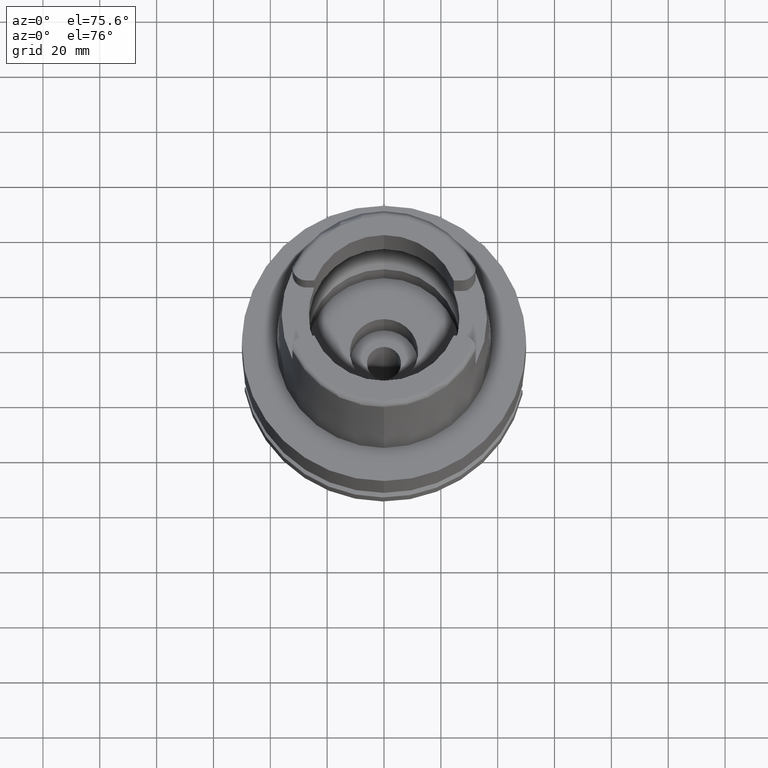
[diagram: clean part render]
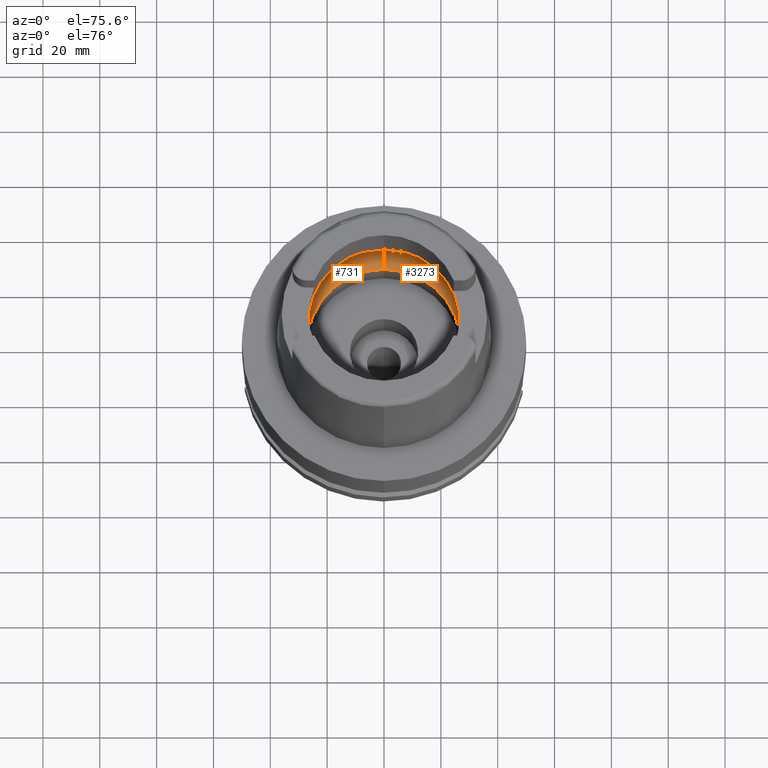
[diagram: same view with one multi-face feature highlighted, each face labeled with its STEP entity id]
A machine part, auxiliary view. The highlighted faces form ONE feature: a constant-radius fillet chain: 2 tangent blend faces with common blend radius 12 mm. The faces share edges in the B-rep.
Their STEP definitions:
[1] entity #3273 (Torus):
#43 = DIRECTION ( 'NONE',  ( 0.0000000000000000000, 1.000000000000000000, 0.0000000000000000000 ) ) ;
#102 = CARTESIAN_POINT ( 'NONE',  ( 0.0000000000000000000, -19.50000000000000000, 9.496624327025999790 ) ) ;
#173 = CARTESIAN_POINT ( 'NONE',  ( 0.0000000000000000000, 0.0000000000000000000, 0.04993178413023999923 ) ) ;
#303 = ORIENTED_EDGE ( 'NONE', *, *, #1255, .T. ) ;
#541 = CARTESIAN_POINT ( 'NONE',  ( 31.48971910754000447, 0.0000000000000000000, 9.000000000000000000 ) ) ;
#565 = CARTESIAN_POINT ( 'NONE',  ( 31.48416663622000300, 0.8216256622719000369, 9.037606172252001357 ) ) ;
#744 = CARTESIAN_POINT ( 'NONE',  ( 31.48416657243999950, -0.8216274657312000462, 9.037606582851999804 ) ) ;
#797 = ORIENTED_EDGE ( 'NONE', *, *, #2004, .F. ) ;
#882 = CARTESIAN_POINT ( 'NONE',  ( 0.0000000000000000000, 0.0000000000000000000, 9.496624327025999790 ) ) ;
#893 = CARTESIAN_POINT ( 'NONE',  ( 0.0000000000000000000, 0.0000000000000000000, 9.496624327025999790 ) ) ;
#917 = DIRECTION ( 'NONE',  ( 0.0000000000000000000, -0.6166666666667049990, -0.7872243785746061429 ) ) ;
#1063 = VERTEX_POINT ( 'NONE', #2509 ) ;
#1073 = CARTESIAN_POINT ( 'NONE',  ( 31.45843229728999901, -1.626122314408000147, 9.205188491873000700 ) ) ;
#1152 = B_SPLINE_CURVE_WITH_KNOTS ( 'NONE', 3,
 ( #2181, #2632, #4807, #565, #3544, #541 ),
 .UNSPECIFIED., .F., .F.,
 ( 4, 1, 1, 4 ),
 ( 0.0000000000000000000, 0.3333333333333000081, 0.6666666666667000474, 1.000000000000000000 ),
 .UNSPECIFIED. ) ;
#1255 = EDGE_CURVE ( 'NONE', #4161, #1063, #3977, .T. ) ;
#1319 = CIRCLE ( 'NONE', #3201, 31.49999999999998934 ) ;
#1320 = CARTESIAN_POINT ( 'NONE',  ( 0.0000000000000000000, 31.50000000000000000, 9.496624327025999790 ) ) ;
#1641 = VERTEX_POINT ( 'NONE', #2553 ) ;
#1689 = DIRECTION ( 'NONE',  ( 0.9971171061384295209, -0.07587803796965221503, 0.0000000000000000000 ) ) ;
#1859 = EDGE_CURVE ( 'NONE', #1641, #4761, #2684, .T. ) ;
#1863 = DIRECTION ( 'NONE',  ( 0.0000000000000000000, 0.0000000000000000000, 1.000000000000000000 ) ) ;
#1932 = TOROIDAL_SURFACE ( 'NONE', #2642, 19.50000000000000000, 12.00000000000000000 ) ;
#1936 = DIRECTION ( 'NONE',  ( 0.0000000000000000000, 0.0000000000000000000, 1.000000000000000000 ) ) ;
#2004 = EDGE_CURVE ( 'NONE', #4847, #1641, #1152, .T. ) ;
#2013 = DIRECTION ( 'NONE',  ( 1.000000000000000000, 0.0000000000000000000, 0.0000000000000000000 ) ) ;
#2181 = CARTESIAN_POINT ( 'NONE',  ( 31.40918884336000616, 2.390158196043999705, 9.496624327025999790 ) ) ;
#2203 = DIRECTION ( 'NONE',  ( 0.0000000000000000000, -1.000000000000000000, 0.0000000000000000000 ) ) ;
#2380 = DIRECTION ( 'NONE',  ( 0.0000000000000000000, 0.6166666666667049990, -0.7872243785746061429 ) ) ;
#2432 = CARTESIAN_POINT ( 'NONE',  ( 0.0000000000000000000, 19.50000000000000000, 9.496624327025999790 ) ) ;
#2457 = AXIS2_PLACEMENT_3D ( 'NONE', #102, #3468, #917 ) ;
#2509 = CARTESIAN_POINT ( 'NONE',  ( 0.0000000000000000000, -31.50000000000000000, 9.496624327025999790 ) ) ;
#2553 = CARTESIAN_POINT ( 'NONE',  ( 31.48971910754000447, 0.0000000000000000000, 9.000000000000000000 ) ) ;
#2632 = CARTESIAN_POINT ( 'NONE',  ( 31.42817530553000083, 2.140656143518000487, 9.388263675090000149 ) ) ;
#2642 = AXIS2_PLACEMENT_3D ( 'NONE', #4062, #1936, #3231 ) ;
#2684 = B_SPLINE_CURVE_WITH_KNOTS ( 'NONE', 3,
 ( #4578, #4917, #744, #1073, #3181, #2842 ),
 .UNSPECIFIED., .F., .F.,
 ( 4, 1, 1, 4 ),
 ( 0.0000000000000000000, 0.3333333333333000081, 0.6666666666667000474, 1.000000000000000000 ),
 .UNSPECIFIED. ) ;
#2746 = AXIS2_PLACEMENT_3D ( 'NONE', #173, #1863, #2203 ) ;
#2750 = EDGE_CURVE ( 'NONE', #3986, #4847, #3816, .T. ) ;
#2817 = CARTESIAN_POINT ( 'NONE',  ( 31.40918884336000616, 2.390158196043999705, 9.496624327025999790 ) ) ;
#2841 = CIRCLE ( 'NONE', #4637, 11.99999999999999822 ) ;
#2842 = CARTESIAN_POINT ( 'NONE',  ( 31.40918884336000616, -2.390158196043999705, 9.496624327025999790 ) ) ;
#2965 = ORIENTED_EDGE ( 'NONE', *, *, #4466, .F. ) ;
#3007 = CARTESIAN_POINT ( 'NONE',  ( 0.0000000000000000000, -26.89999999999999858, 0.04993178413023999923 ) ) ;
#3025 = ORIENTED_EDGE ( 'NONE', *, *, #3961, .F. ) ;
#3069 = ORIENTED_EDGE ( 'NONE', *, *, #1859, .F. ) ;
#3181 = CARTESIAN_POINT ( 'NONE',  ( 31.42817542026000410, -2.140654635826999996, 9.388263020288000860 ) ) ;
#3201 = AXIS2_PLACEMENT_3D ( 'NONE', #882, #5105, #1689 ) ;
#3231 = DIRECTION ( 'NONE',  ( 0.0000000000000000000, 1.000000000000000000, 0.0000000000000000000 ) ) ;
#3273 = ADVANCED_FACE ( 'NONE', ( #5002 ), #1932, .F. ) ;
#3468 = DIRECTION ( 'NONE',  ( -1.000000000000000000, 0.0000000000000000000, 0.0000000000000000000 ) ) ;
#3544 = CARTESIAN_POINT ( 'NONE',  ( 31.48971910754000447, 0.2740808193429000172, 9.000000000000000000 ) ) ;
#3635 = CARTESIAN_POINT ( 'NONE',  ( 31.40918884336000616, -2.390158196043999705, 9.496624327025999790 ) ) ;
#3697 = VERTEX_POINT ( 'NONE', #4283 ) ;
#3732 = AXIS2_PLACEMENT_3D ( 'NONE', #893, #4675, #43 ) ;
#3816 = CIRCLE ( 'NONE', #3732, 31.50000000000000000 ) ;
#3881 = EDGE_LOOP ( 'NONE', ( #797, #4419, #2965, #4106, #303, #3025, #3069 ) ) ;
#3961 = EDGE_CURVE ( 'NONE', #4761, #1063, #1319, .T. ) ;
#3977 = CIRCLE ( 'NONE', #2457, 11.99999999999999822 ) ;
#3986 = VERTEX_POINT ( 'NONE', #1320 ) ;
#4062 = CARTESIAN_POINT ( 'NONE',  ( 0.0000000000000000000, 0.0000000000000000000, 9.496624327025999790 ) ) ;
#4106 = ORIENTED_EDGE ( 'NONE', *, *, #4682, .F. ) ;
#4161 = VERTEX_POINT ( 'NONE', #3007 ) ;
#4283 = CARTESIAN_POINT ( 'NONE',  ( 0.0000000000000000000, 26.89999999999999858, 0.04993178413023999923 ) ) ;
#4419 = ORIENTED_EDGE ( 'NONE', *, *, #2750, .F. ) ;
#4466 = EDGE_CURVE ( 'NONE', #3697, #3986, #2841, .T. ) ;
#4578 = CARTESIAN_POINT ( 'NONE',  ( 31.48971910754000447, 0.0000000000000000000, 9.000000000000000000 ) ) ;
#4637 = AXIS2_PLACEMENT_3D ( 'NONE', #2432, #2013, #2380 ) ;
#4675 = DIRECTION ( 'NONE',  ( 0.0000000000000000000, 0.0000000000000000000, -1.000000000000000000 ) ) ;
#4682 = EDGE_CURVE ( 'NONE', #4161, #3697, #5176, .T. ) ;
#4761 = VERTEX_POINT ( 'NONE', #3635 ) ;
#4807 = CARTESIAN_POINT ( 'NONE',  ( 31.45843215351000310, 1.626125992769999806, 9.205189397203000112 ) ) ;
#4847 = VERTEX_POINT ( 'NONE', #2817 ) ;
#4917 = CARTESIAN_POINT ( 'NONE',  ( 31.48971910754000447, -0.2740816369240999806, 9.000000000000000000 ) ) ;
#5002 = FACE_OUTER_BOUND ( 'NONE', #3881, .T. ) ;
#5105 = DIRECTION ( 'NONE',  ( 0.0000000000000000000, 0.0000000000000000000, -1.000000000000000000 ) ) ;
#5176 = CIRCLE ( 'NONE', #2746, 26.89999999999999858 ) ;
[2] entity #731 (Torus):
#102 = CARTESIAN_POINT ( 'NONE',  ( 0.0000000000000000000, -19.50000000000000000, 9.496624327025999790 ) ) ;
#145 = AXIS2_PLACEMENT_3D ( 'NONE', #799, #342, #4207 ) ;
#195 = EDGE_CURVE ( 'NONE', #1063, #575, #2550, .T. ) ;
#220 = EDGE_CURVE ( 'NONE', #1973, #389, #564, .T. ) ;
#275 = CARTESIAN_POINT ( 'NONE',  ( -31.48971910754000447, 0.0000000000000000000, 9.000000000000000000 ) ) ;
#342 = DIRECTION ( 'NONE',  ( 0.0000000000000000000, 0.0000000000000000000, -1.000000000000000000 ) ) ;
#389 = VERTEX_POINT ( 'NONE', #2342 ) ;
#393 = CARTESIAN_POINT ( 'NONE',  ( -31.40918884336000616, 2.390158196043999705, 9.496624327025999790 ) ) ;
#403 = CIRCLE ( 'NONE', #866, 31.49999999999998934 ) ;
#431 = AXIS2_PLACEMENT_3D ( 'NONE', #1896, #1008, #2322 ) ;
#564 = B_SPLINE_CURVE_WITH_KNOTS ( 'NONE', 3,
 ( #2094, #4657, #823, #2518, #2969, #393 ),
 .UNSPECIFIED., .F., .F.,
 ( 4, 1, 1, 4 ),
 ( 0.0000000000000000000, 0.3333333333333000081, 0.6666666666667000474, 1.000000000000000000 ),
 .UNSPECIFIED. ) ;
#575 = VERTEX_POINT ( 'NONE', #2536 ) ;
#620 = ORIENTED_EDGE ( 'NONE', *, *, #220, .F. ) ;
#627 = DIRECTION ( 'NONE',  ( 0.0000000000000000000, 0.0000000000000000000, -1.000000000000000000 ) ) ;
#729 = CARTESIAN_POINT ( 'NONE',  ( -31.48416659375000037, -0.8216262390445000507, 9.037606438216000626 ) ) ;
#731 = ADVANCED_FACE ( 'NONE', ( #3626 ), #3012, .F. ) ;
#799 = CARTESIAN_POINT ( 'NONE',  ( 0.0000000000000000000, 0.0000000000000000000, 9.496624327025999790 ) ) ;
#823 = CARTESIAN_POINT ( 'NONE',  ( -31.48416661469000033, 0.8216269012393999649, 9.037606318336999678 ) ) ;
#866 = AXIS2_PLACEMENT_3D ( 'NONE', #5374, #627, #4936 ) ;
#917 = DIRECTION ( 'NONE',  ( 0.0000000000000000000, -0.6166666666667049990, -0.7872243785746061429 ) ) ;
#1008 = DIRECTION ( 'NONE',  ( 0.0000000000000000000, 0.0000000000000000000, 1.000000000000000000 ) ) ;
#1063 = VERTEX_POINT ( 'NONE', #2509 ) ;
#1255 = EDGE_CURVE ( 'NONE', #4161, #1063, #3977, .T. ) ;
#1320 = CARTESIAN_POINT ( 'NONE',  ( 0.0000000000000000000, 31.50000000000000000, 9.496624327025999790 ) ) ;
#1401 = AXIS2_PLACEMENT_3D ( 'NONE', #2779, #2362, #1802 ) ;
#1408 = CIRCLE ( 'NONE', #431, 26.89999999999999858 ) ;
#1458 = EDGE_CURVE ( 'NONE', #389, #3986, #403, .T. ) ;
#1534 = ORIENTED_EDGE ( 'NONE', *, *, #1458, .F. ) ;
#1802 = DIRECTION ( 'NONE',  ( 0.0000000000000000000, 1.000000000000000000, 0.0000000000000000000 ) ) ;
#1896 = CARTESIAN_POINT ( 'NONE',  ( 0.0000000000000000000, 0.0000000000000000000, 0.04993178413023999923 ) ) ;
#1973 = VERTEX_POINT ( 'NONE', #5007 ) ;
#2013 = DIRECTION ( 'NONE',  ( 1.000000000000000000, 0.0000000000000000000, 0.0000000000000000000 ) ) ;
#2094 = CARTESIAN_POINT ( 'NONE',  ( -31.48971910754000447, 0.0000000000000000000, 9.000000000000000000 ) ) ;
#2221 = ORIENTED_EDGE ( 'NONE', *, *, #195, .F. ) ;
#2322 = DIRECTION ( 'NONE',  ( 0.0000000000000000000, 1.000000000000000000, 0.0000000000000000000 ) ) ;
#2342 = CARTESIAN_POINT ( 'NONE',  ( -31.40918884336000616, 2.390158196043999705, 9.496624327025999790 ) ) ;
#2362 = DIRECTION ( 'NONE',  ( 0.0000000000000000000, 0.0000000000000000000, 1.000000000000000000 ) ) ;
#2380 = DIRECTION ( 'NONE',  ( 0.0000000000000000000, 0.6166666666667049990, -0.7872243785746061429 ) ) ;
#2403 = ORIENTED_EDGE ( 'NONE', *, *, #4741, .F. ) ;
#2432 = CARTESIAN_POINT ( 'NONE',  ( 0.0000000000000000000, 19.50000000000000000, 9.496624327025999790 ) ) ;
#2457 = AXIS2_PLACEMENT_3D ( 'NONE', #102, #3468, #917 ) ;
#2478 = EDGE_LOOP ( 'NONE', ( #2221, #5021, #3753, #3107, #1534, #620, #2403 ) ) ;
#2509 = CARTESIAN_POINT ( 'NONE',  ( 0.0000000000000000000, -31.50000000000000000, 9.496624327025999790 ) ) ;
#2518 = CARTESIAN_POINT ( 'NONE',  ( -31.45843209623000547, 1.626127188330999784, 9.205189758010000389 ) ) ;
#2536 = CARTESIAN_POINT ( 'NONE',  ( -31.40918884336000616, -2.390158196043999705, 9.496624327025999790 ) ) ;
#2550 = CIRCLE ( 'NONE', #145, 31.50000000000000000 ) ;
#2779 = CARTESIAN_POINT ( 'NONE',  ( 0.0000000000000000000, 0.0000000000000000000, 9.496624327025999790 ) ) ;
#2786 = CARTESIAN_POINT ( 'NONE',  ( -31.45843235400999660, -1.626121130666000170, 9.205188134635001518 ) ) ;
#2841 = CIRCLE ( 'NONE', #4637, 11.99999999999999822 ) ;
#2969 = CARTESIAN_POINT ( 'NONE',  ( -31.42817526838999953, 2.140656631636999929, 9.388263887083001080 ) ) ;
#3007 = CARTESIAN_POINT ( 'NONE',  ( 0.0000000000000000000, -26.89999999999999858, 0.04993178413023999923 ) ) ;
#3012 = TOROIDAL_SURFACE ( 'NONE', #1401, 19.50000000000000000, 12.00000000000000000 ) ;
#3107 = ORIENTED_EDGE ( 'NONE', *, *, #4466, .T. ) ;
#3247 = CARTESIAN_POINT ( 'NONE',  ( -31.42817545703999826, -2.140654152532999621, 9.388262810390001434 ) ) ;
#3468 = DIRECTION ( 'NONE',  ( -1.000000000000000000, 0.0000000000000000000, 0.0000000000000000000 ) ) ;
#3626 = FACE_OUTER_BOUND ( 'NONE', #2478, .T. ) ;
#3697 = VERTEX_POINT ( 'NONE', #4283 ) ;
#3753 = ORIENTED_EDGE ( 'NONE', *, *, #4284, .F. ) ;
#3826 = CARTESIAN_POINT ( 'NONE',  ( -31.48971910754000447, -0.2740811097498000448, 9.000000000000000000 ) ) ;
#3977 = CIRCLE ( 'NONE', #2457, 11.99999999999999822 ) ;
#3986 = VERTEX_POINT ( 'NONE', #1320 ) ;
#4047 = B_SPLINE_CURVE_WITH_KNOTS ( 'NONE', 3,
 ( #5331, #3247, #2786, #729, #3826, #275 ),
 .UNSPECIFIED., .F., .F.,
 ( 4, 1, 1, 4 ),
 ( 0.0000000000000000000, 0.3333333333333000081, 0.6666666666667000474, 1.000000000000000000 ),
 .UNSPECIFIED. ) ;
#4161 = VERTEX_POINT ( 'NONE', #3007 ) ;
#4207 = DIRECTION ( 'NONE',  ( 0.0000000000000000000, -1.000000000000000000, 0.0000000000000000000 ) ) ;
#4283 = CARTESIAN_POINT ( 'NONE',  ( 0.0000000000000000000, 26.89999999999999858, 0.04993178413023999923 ) ) ;
#4284 = EDGE_CURVE ( 'NONE', #3697, #4161, #1408, .T. ) ;
#4466 = EDGE_CURVE ( 'NONE', #3697, #3986, #2841, .T. ) ;
#4637 = AXIS2_PLACEMENT_3D ( 'NONE', #2432, #2013, #2380 ) ;
#4657 = CARTESIAN_POINT ( 'NONE',  ( -31.48971910754000447, 0.2740813517951999900, 9.000000000000000000 ) ) ;
#4741 = EDGE_CURVE ( 'NONE', #575, #1973, #4047, .T. ) ;
#4936 = DIRECTION ( 'NONE',  ( -0.9971171061384295209, 0.07587803796965221503, 0.0000000000000000000 ) ) ;
#5007 = CARTESIAN_POINT ( 'NONE',  ( -31.48971910754000447, 0.0000000000000000000, 9.000000000000000000 ) ) ;
#5021 = ORIENTED_EDGE ( 'NONE', *, *, #1255, .F. ) ;
#5331 = CARTESIAN_POINT ( 'NONE',  ( -31.40918884336000616, -2.390158196043999705, 9.496624327025999790 ) ) ;
#5374 = CARTESIAN_POINT ( 'NONE',  ( 0.0000000000000000000, 0.0000000000000000000, 9.496624327025999790 ) ) ;